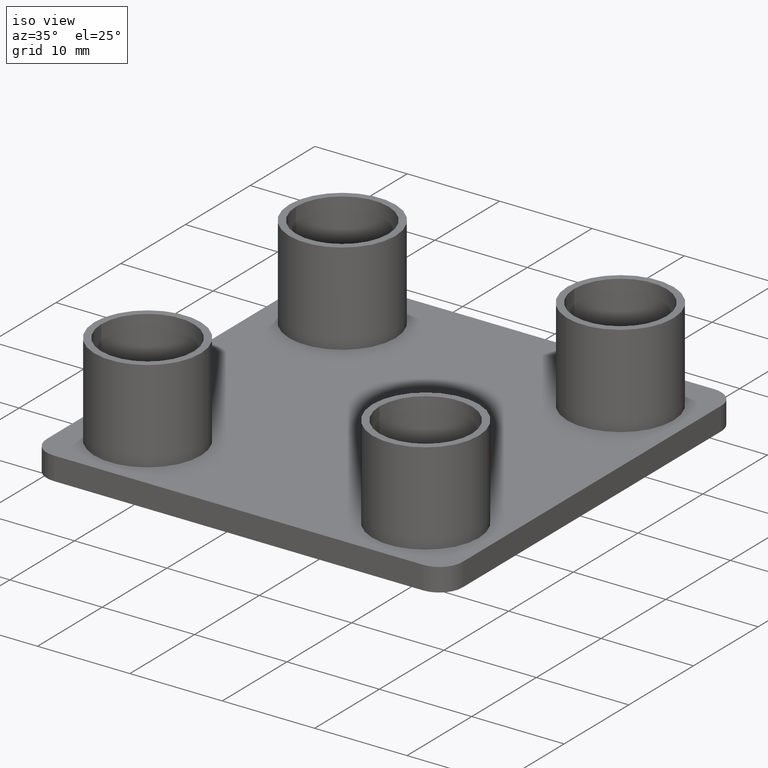
[diagram: clean part render]
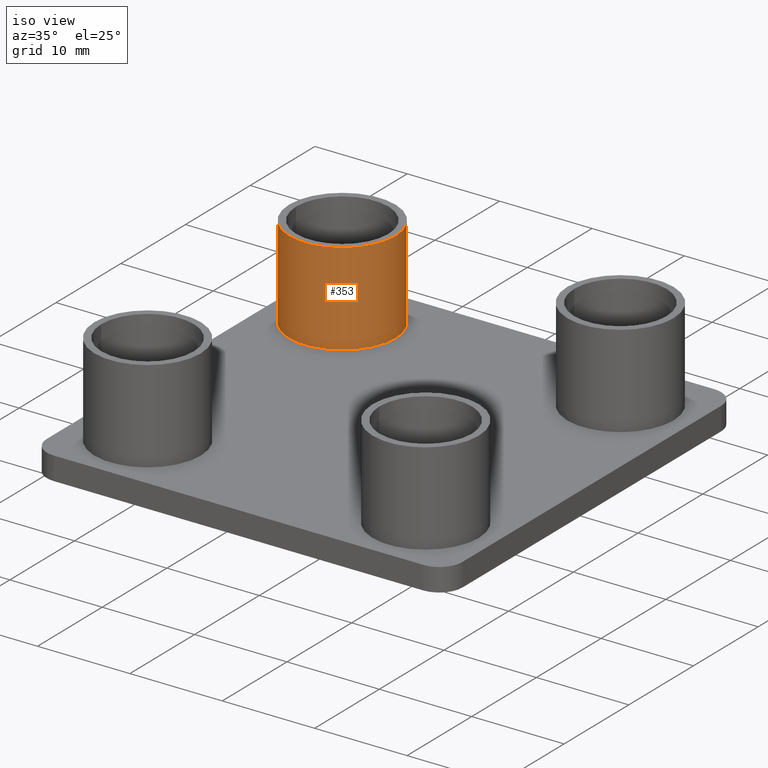
[diagram: same view with one face highlighted and labeled with its STEP entity id]
A machine part, iso view. The second image highlights one B-rep face of the part: STEP entity #353.
In plain terms, the highlighted cylindrical surface (bore or boss wall) has radius 5.75 mm, axis along (0, 0, 1).
Its self-contained STEP definition (entity closure, byte-faithful):
#25=FACE_BOUND('',#102,.T.);
#65=FACE_OUTER_BOUND('',#101,.T.);
#101=EDGE_LOOP('',(#309));
#102=EDGE_LOOP('',(#310));
#123=CIRCLE('',#380,5.749999999977);
#133=CIRCLE('',#402,5.749999999977);
#187=VERTEX_POINT('',#583);
#197=VERTEX_POINT('',#615);
#227=EDGE_CURVE('',#187,#187,#123,.T.);
#237=EDGE_CURVE('',#197,#197,#133,.T.);
#309=ORIENTED_EDGE('',*,*,#227,.T.);
#310=ORIENTED_EDGE('',*,*,#237,.F.);
#329=CYLINDRICAL_SURFACE('',#401,5.749999999977);
#353=ADVANCED_FACE('',(#65,#25),#329,.T.);
#380=AXIS2_PLACEMENT_3D('',#584,#467,#468);
#401=AXIS2_PLACEMENT_3D('',#614,#509,#510);
#402=AXIS2_PLACEMENT_3D('',#616,#511,#512);
#467=DIRECTION('center_axis',(0.,0.,1.));
#468=DIRECTION('ref_axis',(1.,0.,0.));
#509=DIRECTION('center_axis',(0.,0.,1.));
#510=DIRECTION('ref_axis',(1.,0.,0.));
#511=DIRECTION('center_axis',(0.,0.,1.));
#512=DIRECTION('ref_axis',(1.,0.,0.));
#583=CARTESIAN_POINT('',(1.69995549999275,15.0500224999396,0.));
#584=CARTESIAN_POINT('Origin',(7.44995549996974,15.0500224999396,0.));
#614=CARTESIAN_POINT('Origin',(7.44995549996974,15.0500224999396,0.));
#615=CARTESIAN_POINT('',(1.69995549999275,15.0500224999396,10.));
#616=CARTESIAN_POINT('Origin',(7.44995549996974,15.0500224999396,10.));